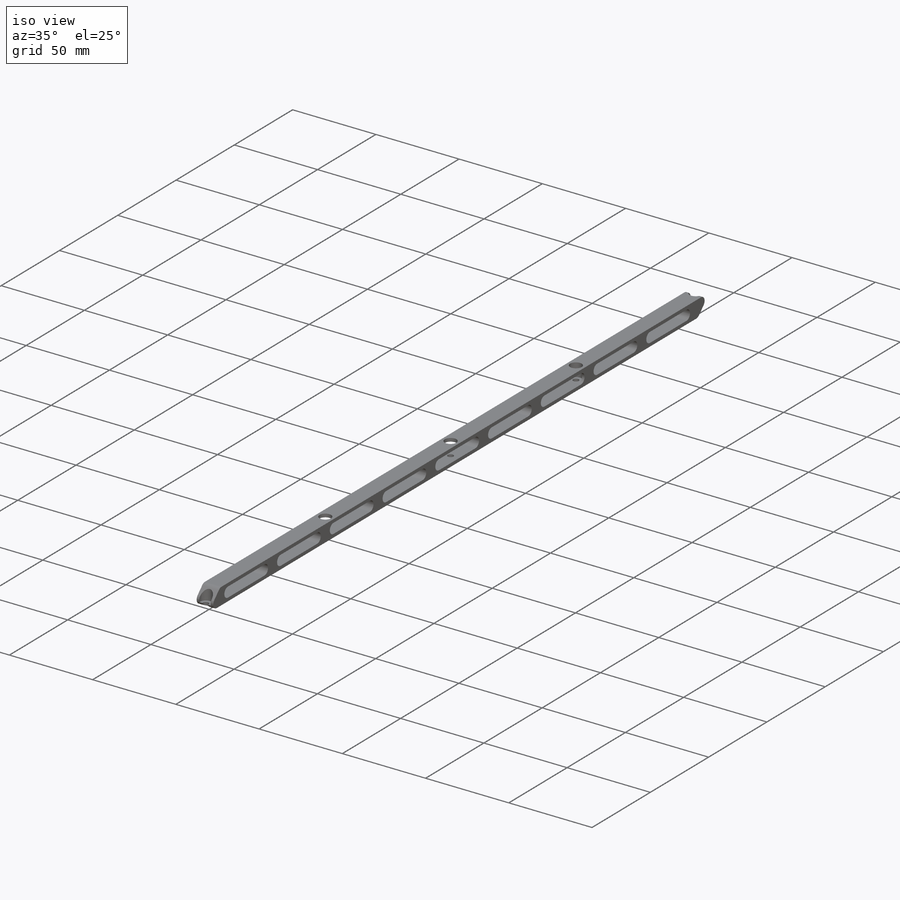
[diagram: iso view]
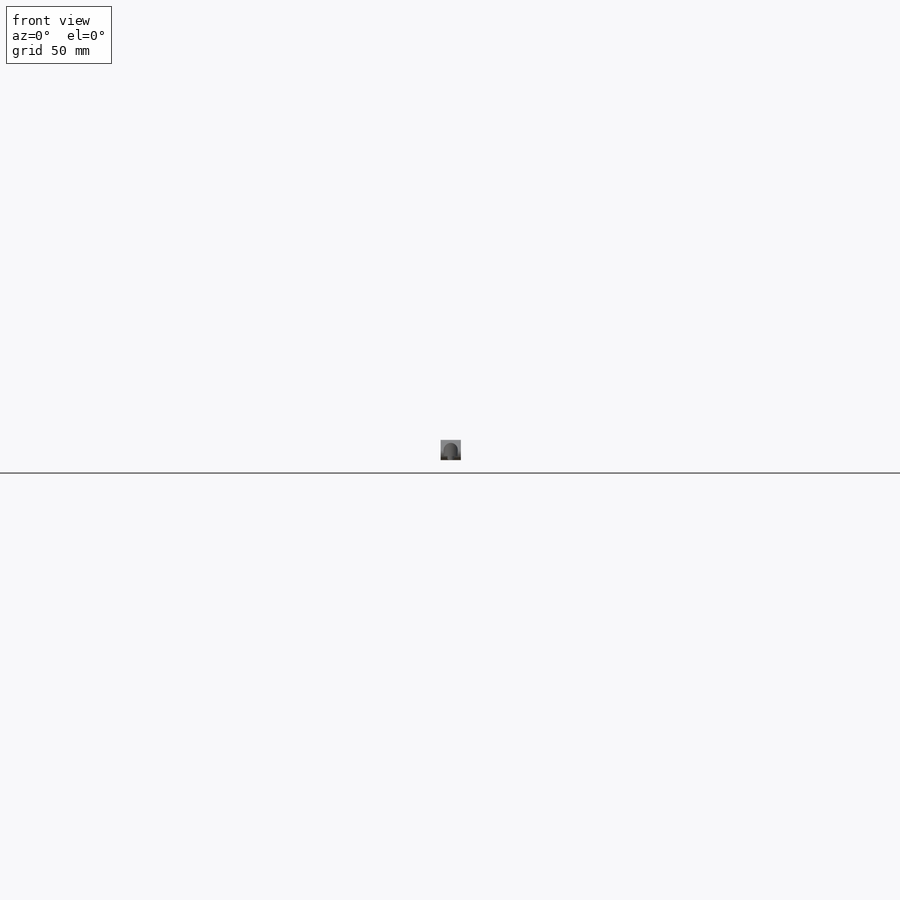
[diagram: front view]
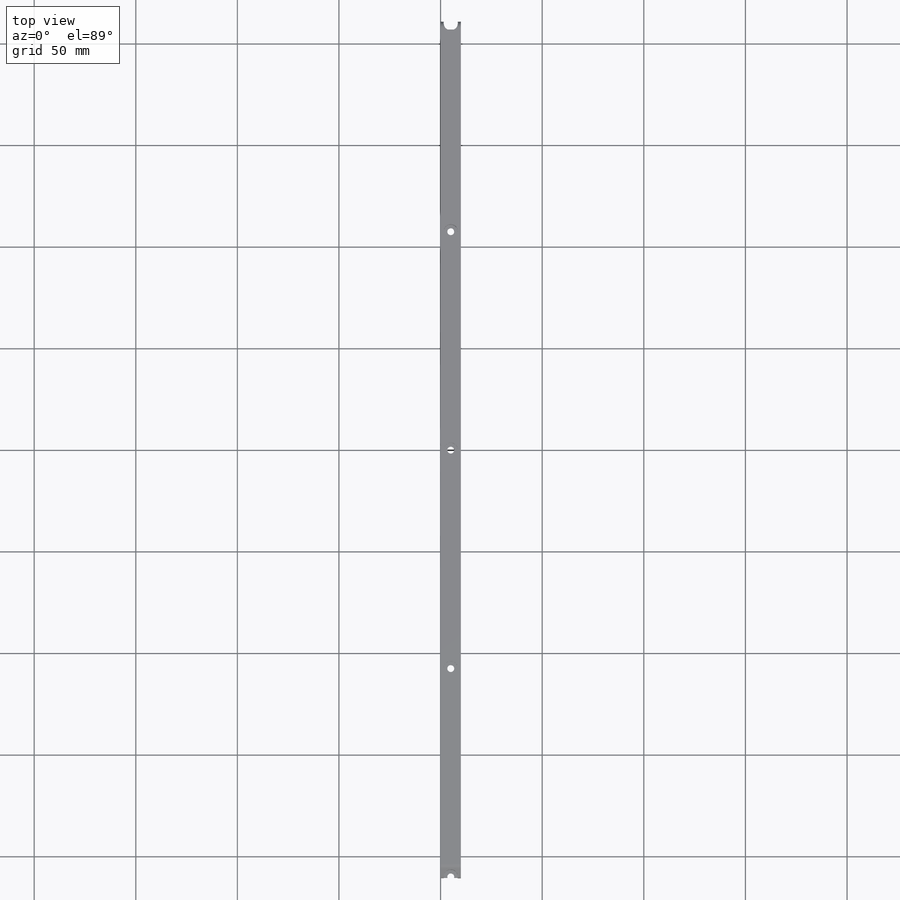
[diagram: top view]
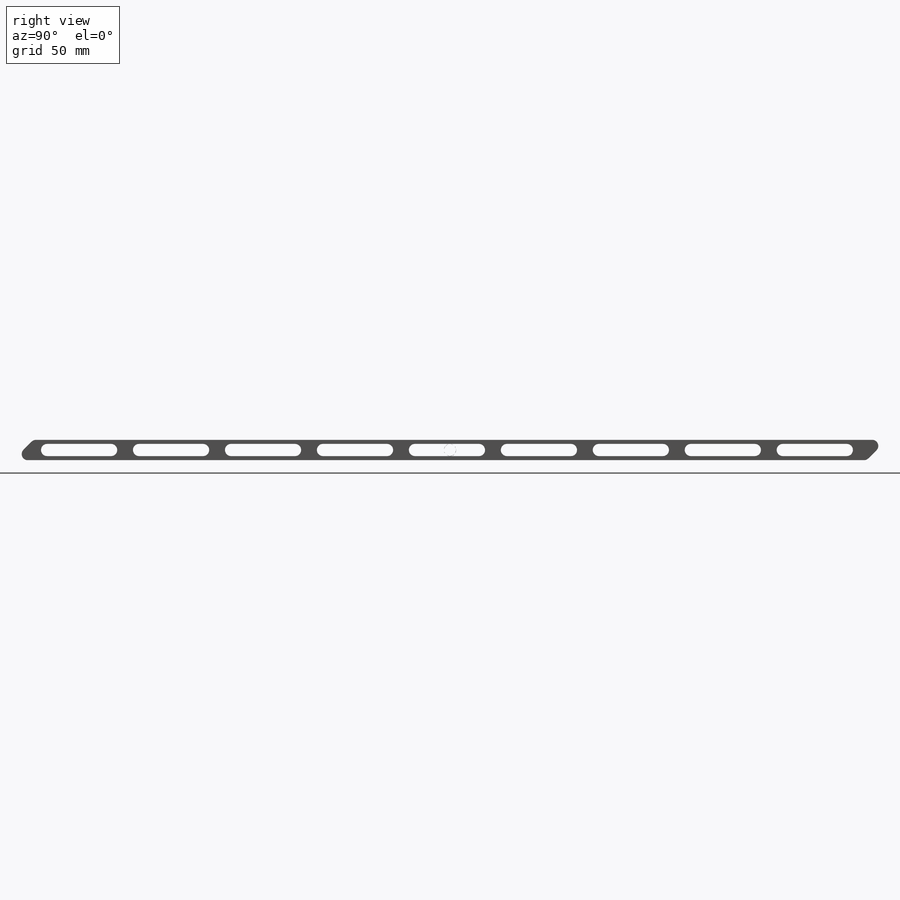
[diagram: right view]
SOLIDWORKS PART (.sldprt)
format: sldprt  version: not decoded by parser v0  size: 404,992 bytes
history: native  units: mm
features: sketch x3, material x1, extrude x1, fillet x1, hole x1 (+12 scaffold rows collapsed)
feature tree (19):
  scaffold x12  (default folders/planes/origin — collapsed)
  material  "ABS"
  sketch  "Sketch1"  dims[c1.D1=~14.332756mm c1.D2=~128.743355mm c2.D1=10.0mm c2.D2=430.0mm c2.D3=2.0mm c2.D4=2.0mm c2.D5=11.0mm c3.D5=45.0deg c3.D6=40.0mm c3.D7=~24.120334mm c4.D7=45.0deg c4.D8=2.0mm c4.D10=~14.44507mm c5.D10=45.0deg c5.D11=~4.242641mm c5.D8=5.5mm c6.D11=5.25mm c6.D12=5.0mm c6.D13=5.0mm c7.D12=1.5mm c7.D8=~177.273689deg c7.D9=9.0]
  extrude  "Boss-Extrude1"  Depth=10mm
  fillet  "Fillet1"  Radius=3mm
  hole  "CBORE for M3 Hex Head Cap Screw1"  Diameter=3.4mm Depth=10mm
  sketch  "Sketch3"  dims[D1=5.0mm D2=102.5mm D3=107.5mm D4=107.5mm D5=102.5mm D6=5.0mm]
  sketch  "Sketch2"  dims[hole-wizard template sketch: 42 standard entries collapsed; hole parameters kept: c12.Thru Hole Depth=10.0mm c12.C'Bore Dia.=7.0mm c12.C'Bore Depth=8.0mm]
decode coverage: 6 of 6 modeling features carry decoded parameters
note: ~ marks probable driven/reference dimensions
note: suppression state not decoded; provenance and decode notes live in map.json
